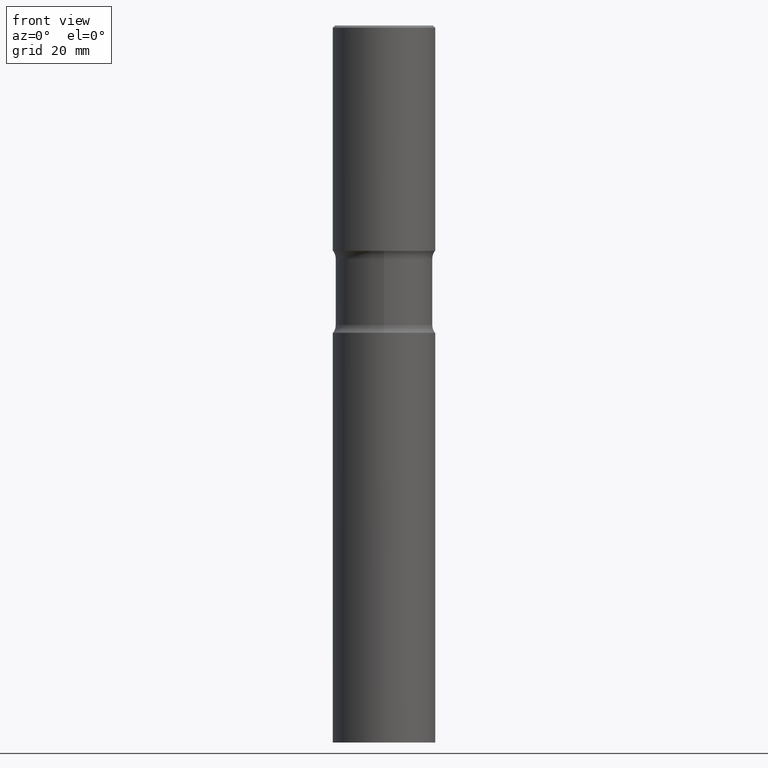
[diagram: clean part render]
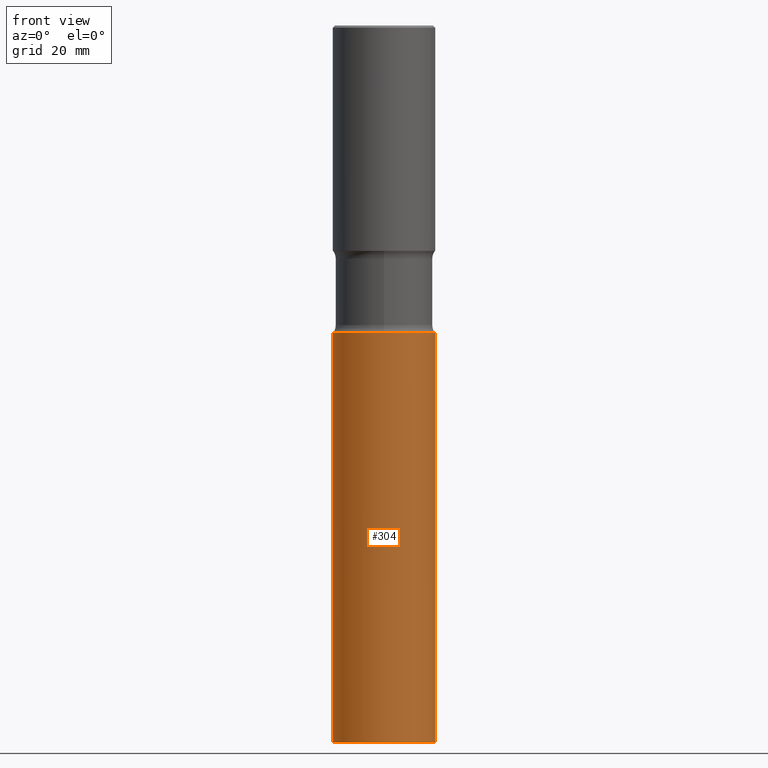
[diagram: same view with one face highlighted and labeled with its STEP entity id]
A machine part, front view. The second image highlights one B-rep face of the part: STEP entity #304.
In plain terms, the highlighted cylindrical surface (partial cylindrical patch) has radius 12.5006 mm, axis along (-0, 0, 1).
Its self-contained STEP definition (entity closure, byte-faithful):
#1 = DIRECTION ( 'NONE',  ( 1.000000000000000000, -6.982962677686265922E-15, 4.876176775795935793E-29 ) ) ;
#19 = EDGE_CURVE ( 'NONE', #288, #395, #403, .T. ) ;
#22 = AXIS2_PLACEMENT_3D ( 'NONE', #146, #66, #303 ) ;
#48 = VECTOR ( 'NONE', #181, 39.37007874015748143 ) ;
#54 = CARTESIAN_POINT ( 'NONE',  ( -0.4921499999999999764, 3.496936074043332897E-15, -2.420853904668951509E-29 ) ) ;
#62 = CIRCLE ( 'NONE', #311, 0.4921499999999999764 ) ;
#66 = DIRECTION ( 'NONE',  ( -2.445468806185136597E-29, 3.491481338843145583E-15, 1.000000000000000000 ) ) ;
#69 = VECTOR ( 'NONE', #318, 39.37007874015748143 ) ;
#89 = EDGE_CURVE ( 'NONE', #395, #444, #464, .T. ) ;
#130 = CARTESIAN_POINT ( 'NONE',  ( -0.4921499999999999764, -1.368569103880543813E-14, -2.952799999999998981 ) ) ;
#146 = CARTESIAN_POINT ( 'NONE',  ( 7.220980290903469061E-29, -1.030964609733603695E-14, -2.952799999999998981 ) ) ;
#159 = FACE_OUTER_BOUND ( 'NONE', #392, .T. ) ;
#171 = CARTESIAN_POINT ( 'NONE',  ( 1.684879098085435385E-28, -2.405560812836150510E-14, -6.889800000000000146 ) ) ;
#177 = ORIENTED_EDGE ( 'NONE', *, *, #493, .T. ) ;
#181 = DIRECTION ( 'NONE',  ( -2.445468806185136877E-29, 3.491481338843145188E-15, 1.000000000000000000 ) ) ;
#204 = LINE ( 'NONE', #346, #69 ) ;
#232 = EDGE_CURVE ( 'NONE', #383, #444, #204, .T. ) ;
#233 = AXIS2_PLACEMENT_3D ( 'NONE', #391, #307, #1 ) ;
#241 = ORIENTED_EDGE ( 'NONE', *, *, #19, .F. ) ;
#284 = CARTESIAN_POINT ( 'NONE',  ( 0.4921499999999999764, -2.749227321018479930E-14, -6.889800000000000146 ) ) ;
#288 = VERTEX_POINT ( 'NONE', #313 ) ;
#303 = DIRECTION ( 'NONE',  ( 1.000000000000000000, -6.982962677686265922E-15, 0.000000000000000000 ) ) ;
#304 = ADVANCED_FACE ( 'NONE', ( #159 ), #467, .T. ) ;
#307 = DIRECTION ( 'NONE',  ( -2.445468806185136597E-29, 3.491481338843145583E-15, 1.000000000000000000 ) ) ;
#311 = AXIS2_PLACEMENT_3D ( 'NONE', #171, #408, #405 ) ;
#313 = CARTESIAN_POINT ( 'NONE',  ( -0.4921499999999999764, -1.368569103880543813E-14, -6.889800000000000146 ) ) ;
#318 = DIRECTION ( 'NONE',  ( -2.445468806185136877E-29, 3.491481338843145188E-15, 1.000000000000000000 ) ) ;
#346 = CARTESIAN_POINT ( 'NONE',  ( 0.4921499999999999764, -3.436665081823295777E-15, 2.399810400207969603E-29 ) ) ;
#383 = VERTEX_POINT ( 'NONE', #284 ) ;
#391 = CARTESIAN_POINT ( 'NONE',  ( 0.000000000000000000, 0.000000000000000000, 0.000000000000000000 ) ) ;
#392 = EDGE_LOOP ( 'NONE', ( #241, #177, #491, #446 ) ) ;
#395 = VERTEX_POINT ( 'NONE', #130 ) ;
#403 = LINE ( 'NONE', #54, #48 ) ;
#405 = DIRECTION ( 'NONE',  ( 1.000000000000000000, -6.982962677686265922E-15, 0.000000000000000000 ) ) ;
#408 = DIRECTION ( 'NONE',  ( -2.445468806185136597E-29, 3.491481338843145583E-15, 1.000000000000000000 ) ) ;
#444 = VERTEX_POINT ( 'NONE', #486 ) ;
#446 = ORIENTED_EDGE ( 'NONE', *, *, #89, .F. ) ;
#464 = CIRCLE ( 'NONE', #22, 0.4921499999999999764 ) ;
#467 = CYLINDRICAL_SURFACE ( 'NONE', #233, 0.4921499999999999764 ) ;
#486 = CARTESIAN_POINT ( 'NONE',  ( 0.4921499999999999764, -1.374631117915933273E-14, -2.952799999999998981 ) ) ;
#491 = ORIENTED_EDGE ( 'NONE', *, *, #232, .T. ) ;
#493 = EDGE_CURVE ( 'NONE', #288, #383, #62, .T. ) ;